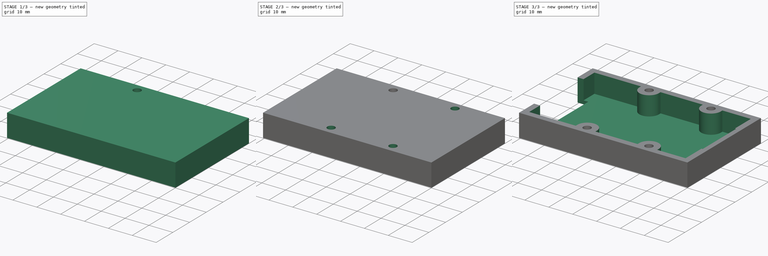
[diagram: build sequence overview — one tinted view per stage of 3, left to right]
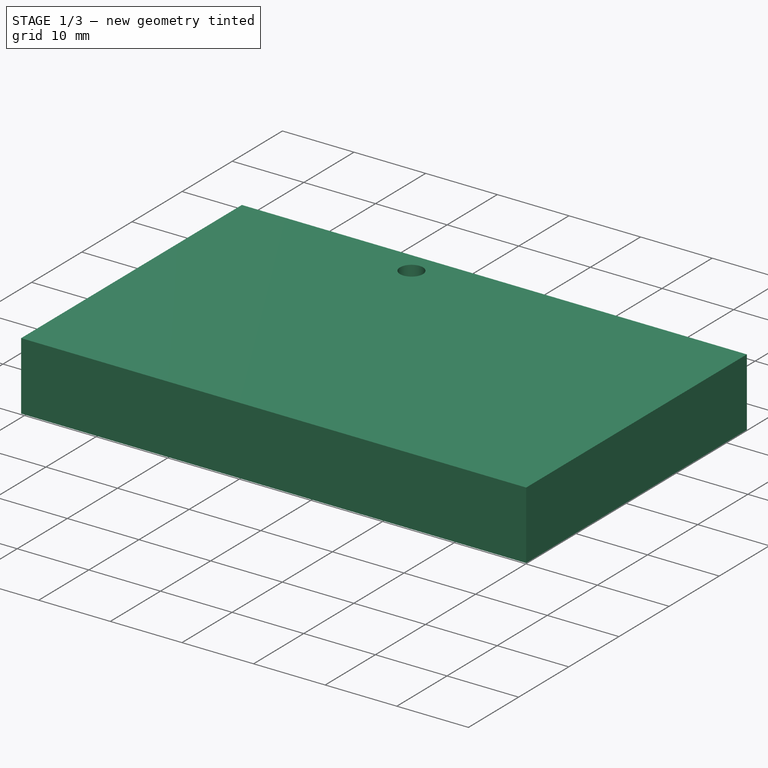
[diagram: stage 1 of 3 — iso view after this stage's code; geometry added in this stage tinted green]
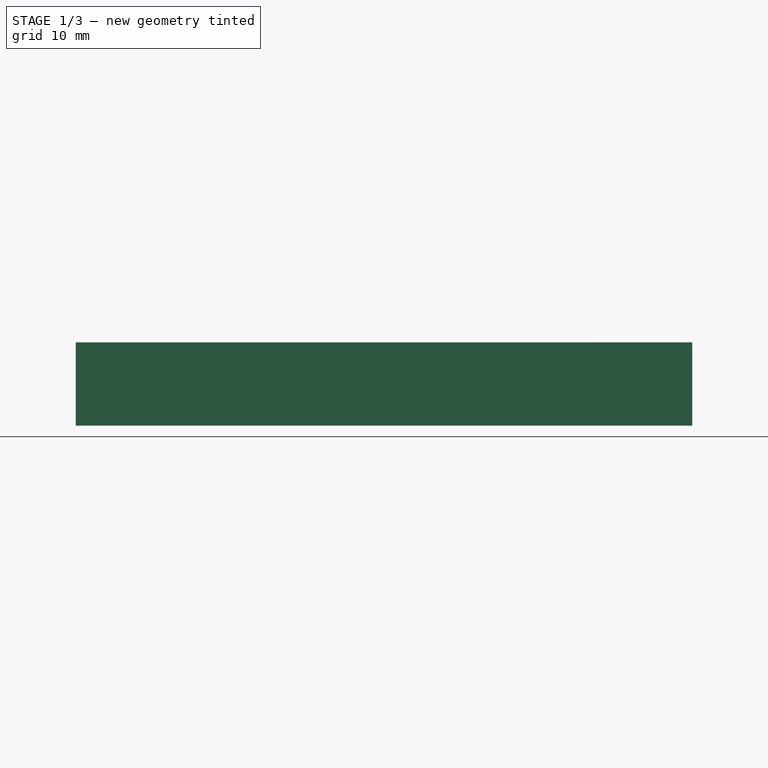
[diagram: stage 1 of 3 — front view after this stage's code; geometry added in this stage tinted green]
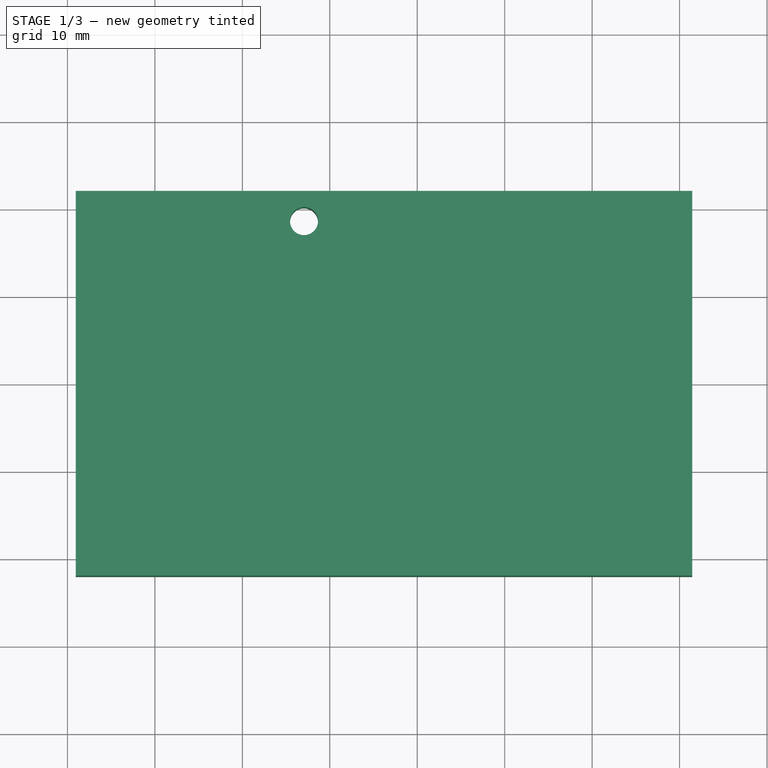
[diagram: stage 1 of 3 — top view after this stage's code; geometry added in this stage tinted green]
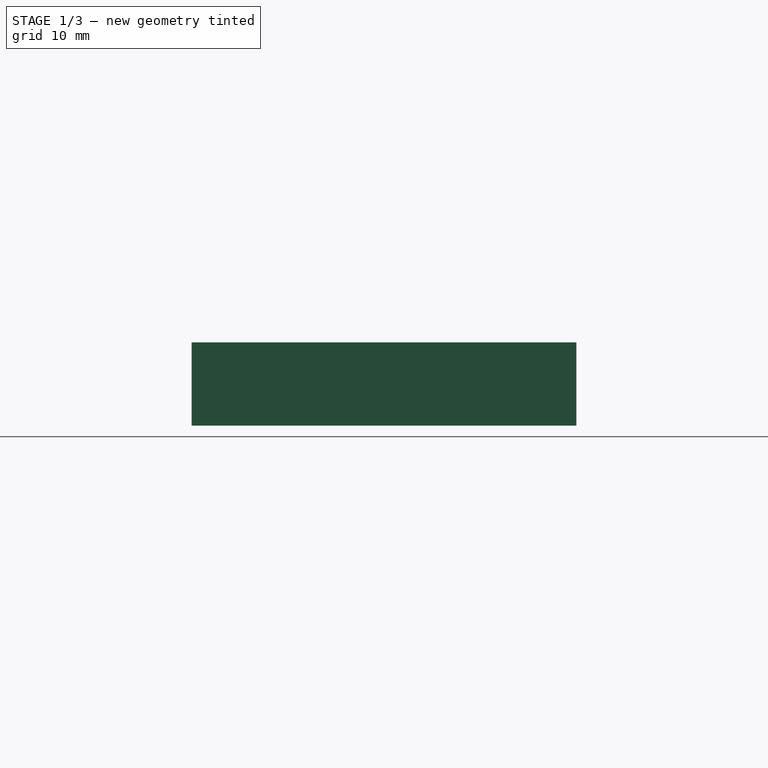
[diagram: stage 1 of 3 — right view after this stage's code; geometry added in this stage tinted green]
FCSTD DOCUMENT  (FreeCAD 0.17R13522 (Git))
Label: Keithley_17X_USB_Bottom
License: All rights reserved
LicenseURL: http://en.wikipedia.org/wiki/All_rights_reserved
objects: Sketcher::SketchObject×4, PartDesign::Pocket×3, PartDesign::Mirrored×2, Spreadsheet::Sheet×1, PartDesign::Pad×1, PartDesign::MultiTransform×1, PartDesign::Body×1
note: 16 computed .brp shape members not serialized (recipe doc carries the construction recipe); baked Part::Feature solids carry a one-line shape summary decoded from their .brp

FEATURE [Spreadsheet::Sheet] Spreadsheet  label="dims"
  cells = A1=Case Thickness; B1(case_t)==0.375in; A2=Case Length; B2(case_l)=70.5; A3=Case Width; B3(case_w)==44mm; A4=Case Side Thickness; B4(case_side_t)=2.5; A5=Case Top Thickness; B5(case_top_t)=1.5; A6=Mount Hole Diameter; B6(mnt_dia)=3.2000000000000002; A7=Mount Hole X Spacing; B7(mnt_x)=25.899999999999999; A8=Mount Hole Y Spacing; B8(mnt_y)=37.100000000000001; A9=PCB Right to Center; B9(right_to_cl)=31.449999999999999; A10=IDC Cutout Width; B10(idc_cutout_w)=26; A11=IDC Cutout Lenght; B11(idc_cutout_l)=4.5
FEATURE [Sketcher::SketchObject] Sketch
  MapMode = 5
  Support = -> [XY_Plane]
  expr: Constraints[11] = dims.right_to_cl
  expr: Constraints[10] = dims.case_w
  expr: Constraints[9] = dims.case_l
  sketch-geometry (4):
    g0: LineSegment StartX=-39.05 StartY=22 StartZ=0 EndX=31.45 EndY=22 EndZ=0
    g1: LineSegment StartX=31.45 StartY=22 StartZ=0 EndX=31.45 EndY=-22 EndZ=0
    g2: LineSegment StartX=31.45 StartY=-22 StartZ=0 EndX=-39.05 EndY=-22 EndZ=0
    g3: LineSegment StartX=-39.05 StartY=-22 StartZ=0 EndX=-39.05 EndY=22 EndZ=0
  constraints (12):
    c: Coincident(g0,g1)
    c: Coincident(g1,g2)
    c: Coincident(g2,g3)
    c: Coincident(g3,g0)
    c: Horizontal(g0)
    c: Horizontal(g2)
    c: Vertical(g1)
    c: Vertical(g3)
    c: Symmetric(g0,g1,g-1)
    c: DistanceX(g0,g0) = 70.5
    c: DistanceY(g1,g1) = 44
    c: DistanceX(g-1,g0) = 31.45
FEATURE [PartDesign::Pad] Pad
  Length = 9.525
  Length2 = 100
  Profile = -> Sketch
  Refine = true
  Reversed = true
  Type = 0
  expr: Length = dims.case_t
FEATURE [Sketcher::SketchObject] Sketch001
  MapMode = 5
  Support = -> [Pad]
  expr: Constraints[2] = dims.mnt_y / 2
  expr: Constraints[1] = dims.mnt_x / 2
  expr: Constraints[0] = dims.mnt_dia / 2
  sketch-geometry (1):
    g0: Circle CenterX=-12.95 CenterY=18.55 CenterZ=0 NormalX=0 NormalY=0 NormalZ=1 AngleXU=0 Radius=1.6
  constraints (3):
    c: Radius(g0) = 1.6
    c: DistanceX(g0,g-1) = 12.95
    c: DistanceY(g-1,g0) = 18.55
FEATURE [PartDesign::Pocket] Pocket
  BaseFeature = -> Pad
  Length = 5
  Length2 = 100
  Profile = -> Sketch001
  Refine = true
  Type = 1
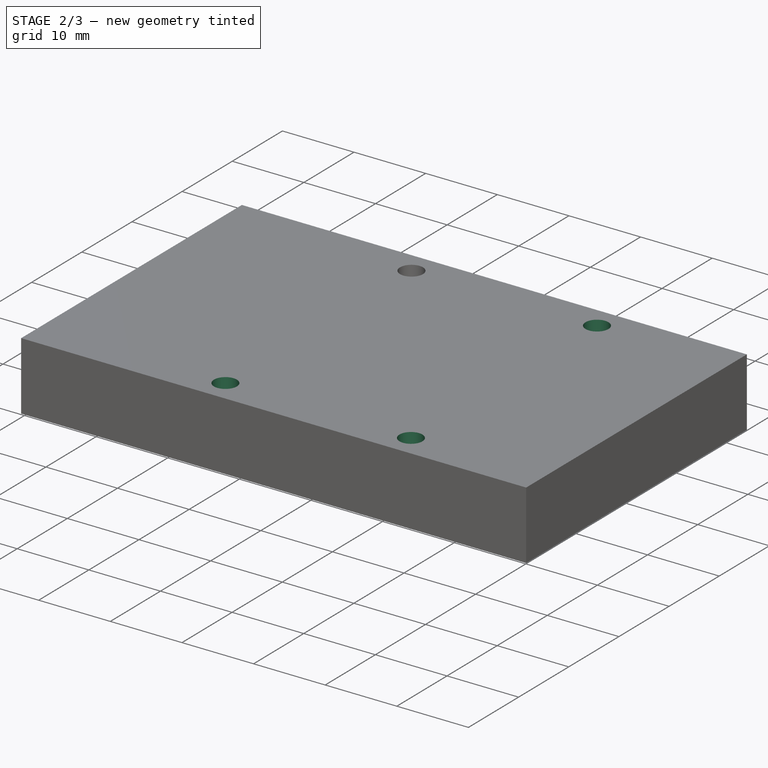
[diagram: stage 2 of 3 — iso view after this stage's code; geometry added in this stage tinted green]
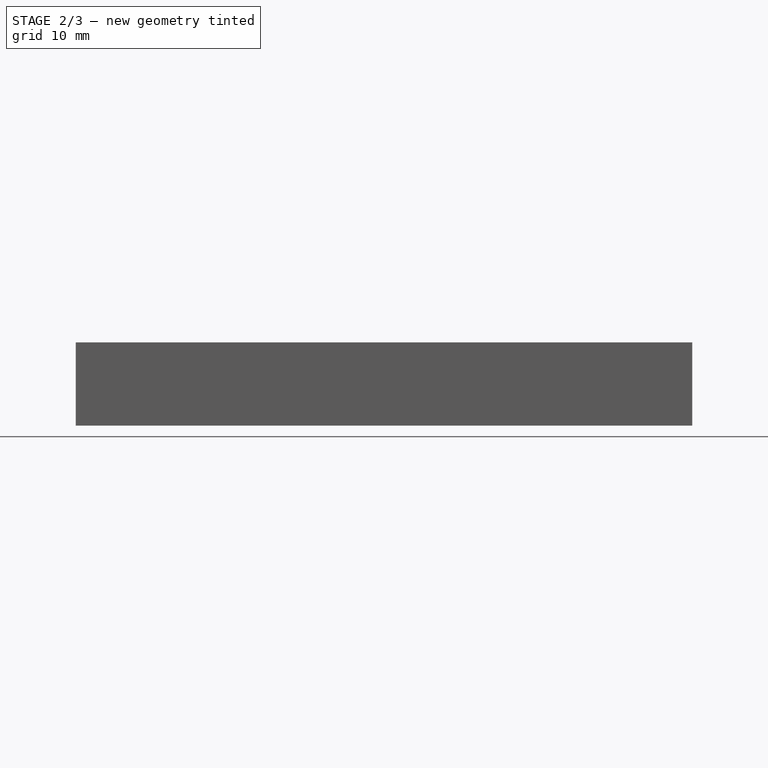
[diagram: stage 2 of 3 — front view after this stage's code; geometry added in this stage tinted green]
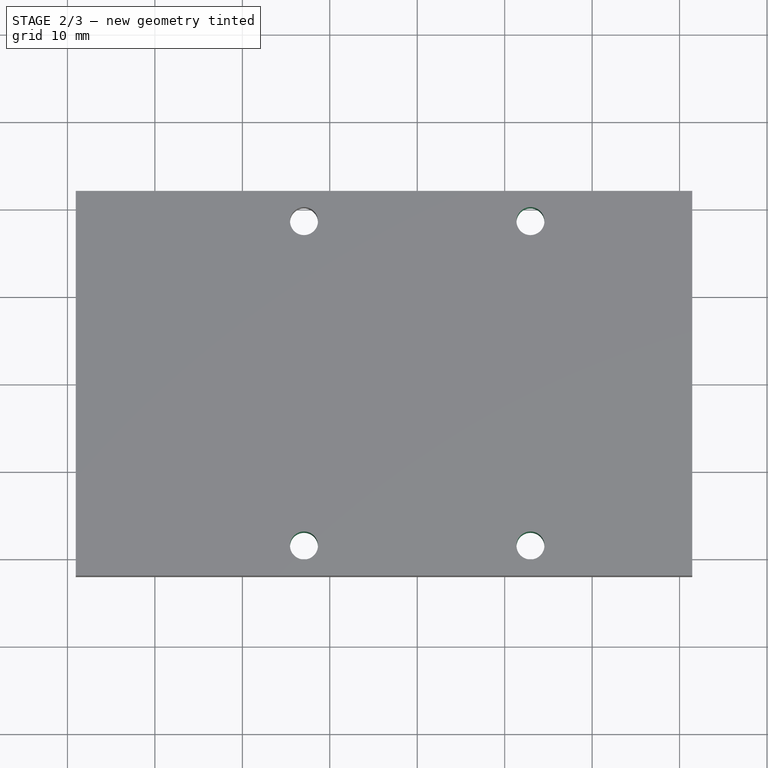
[diagram: stage 2 of 3 — top view after this stage's code; geometry added in this stage tinted green]
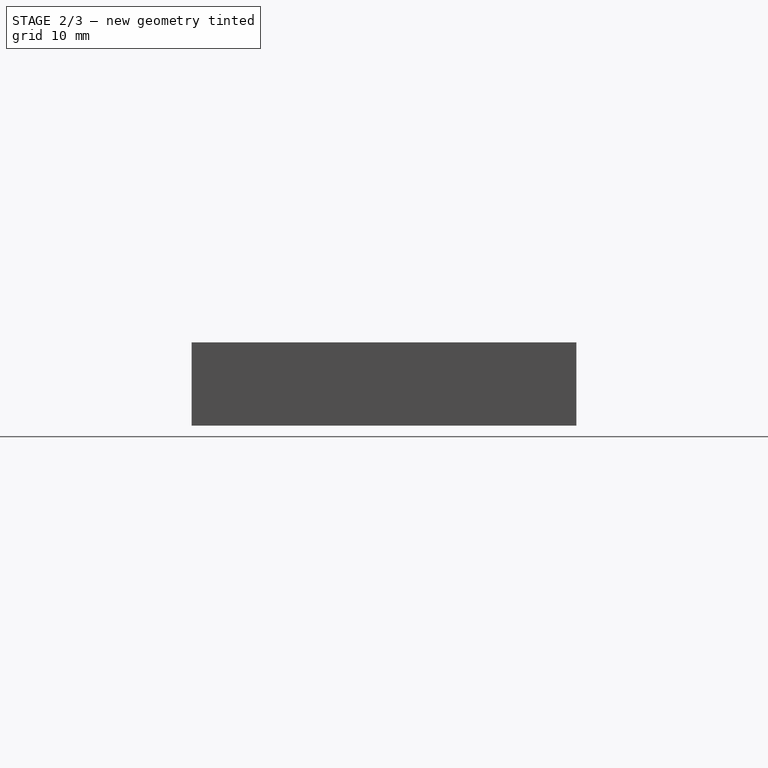
[diagram: stage 2 of 3 — right view after this stage's code; geometry added in this stage tinted green]
FEATURE [PartDesign::Mirrored] Mirrored
  MirrorPlane = -> YZ_Plane
  Refine = true
FEATURE [PartDesign::Mirrored] Mirrored001
  MirrorPlane = -> XZ_Plane
  Refine = true
FEATURE [PartDesign::MultiTransform] MultiTransform
  BaseFeature = -> Pocket
  Originals = -> [Pocket]
  Refine = true
  Transformations = -> [Mirrored,Mirrored001]
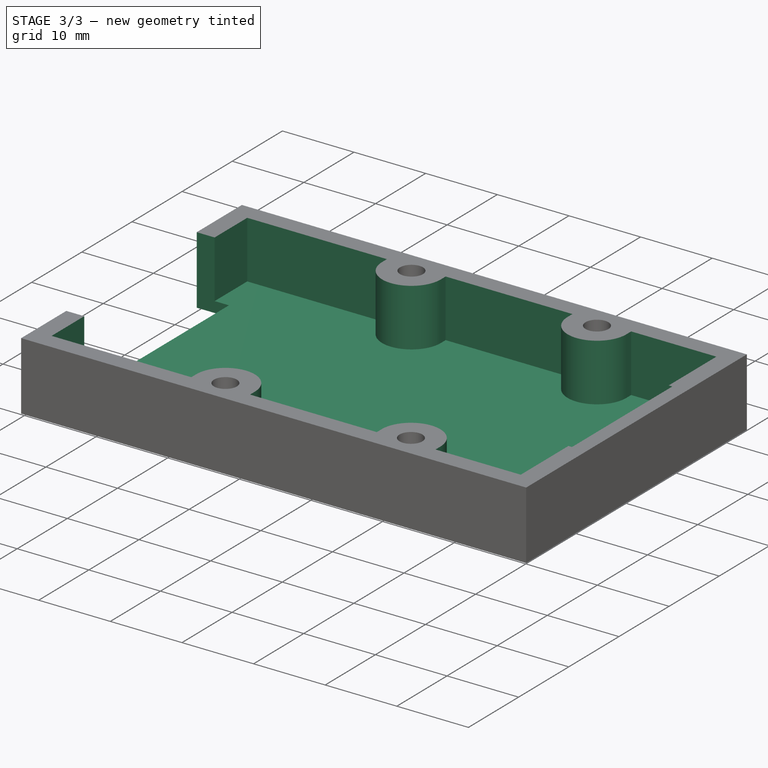
[diagram: stage 3 of 3 — iso view after this stage's code; geometry added in this stage tinted green]
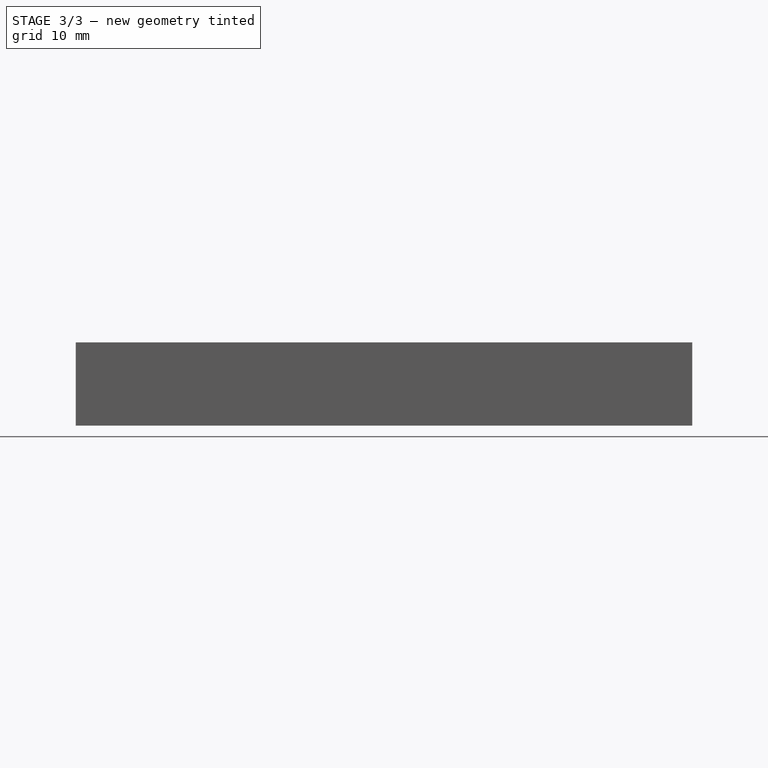
[diagram: stage 3 of 3 — front view after this stage's code; geometry added in this stage tinted green]
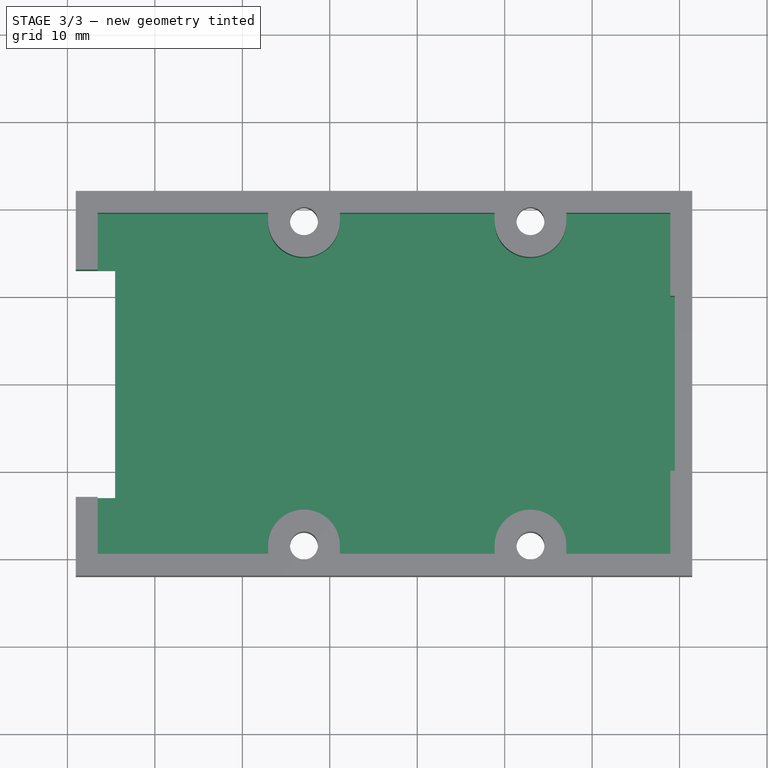
[diagram: stage 3 of 3 — top view after this stage's code; geometry added in this stage tinted green]
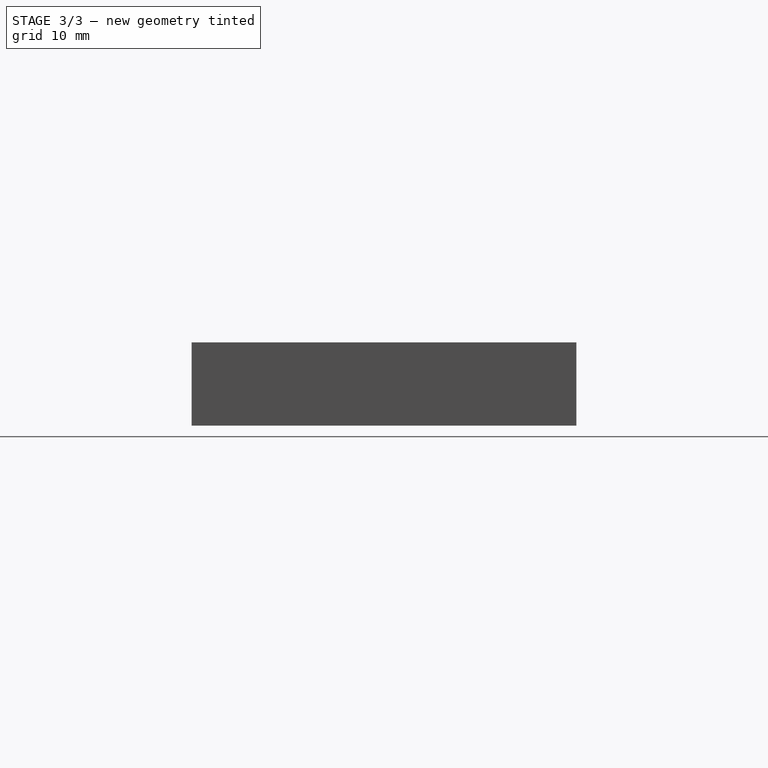
[diagram: stage 3 of 3 — right view after this stage's code; geometry added in this stage tinted green]
FEATURE [Sketcher::SketchObject] Sketch002
  ExternalGeometry = -> [MultiTransform]
  MapMode = 5
  Support = -> [MultiTransform]
  expr: Constraints[27] = dims.mnt_dia / 2 + dims.case_side_t
  expr: Constraints[26] = dims.mnt_dia / 2 + dims.case_side_t
  expr: Constraints[25] = dims.mnt_dia / 2 + dims.case_side_t
  expr: Constraints[24] = dims.mnt_dia / 2 + dims.case_side_t
  expr: Constraints[10] = dims.case_side_t
  expr: Constraints[9] = dims.case_side_t
  expr: Constraints[8] = dims.case_side_t
  sketch-geometry (32):
    g0: LineSegment [constr] StartX=-36.55 StartY=19.5 StartZ=0 EndX=28.95 EndY=19.5 EndZ=0
    g1: LineSegment [constr] StartX=28.95 StartY=19.5 StartZ=0 EndX=28.95 EndY=-19.5 EndZ=0
    g2: LineSegment [constr] StartX=28.95 StartY=-19.5 StartZ=0 EndX=-36.55 EndY=-19.5 EndZ=0
    g3: LineSegment [constr] StartX=-36.55 StartY=-19.5 StartZ=0 EndX=-36.55 EndY=19.5 EndZ=0
    g4: LineSegment [constr] StartX=-17.05 StartY=19.5 StartZ=0 EndX=-17.05 EndY=-19.5 EndZ=0
    g5: LineSegment [constr] StartX=-8.85 StartY=19.5 StartZ=0 EndX=-8.85 EndY=-19.5 EndZ=0
    g6: LineSegment [constr] StartX=8.85 StartY=-19.5 StartZ=0 EndX=8.85 EndY=19.5 EndZ=0
    g7: LineSegment [constr] StartX=17.05 StartY=19.5 StartZ=0 EndX=17.05 EndY=-19.5 EndZ=0
    g8: LineSegment StartX=29.45 StartY=-10 StartZ=0 EndX=29.45 EndY=10 EndZ=0
    g9: LineSegment StartX=29.45 StartY=10 StartZ=0 EndX=28.95 EndY=10 EndZ=0
    g10: LineSegment StartX=28.95 StartY=10 StartZ=0 EndX=28.95 EndY=19.5 EndZ=0
    g11: LineSegment StartX=28.95 StartY=19.5 StartZ=0 EndX=17.05 EndY=19.5 EndZ=0
    g12: LineSegment StartX=8.85 StartY=19.5 StartZ=0 EndX=-8.85 EndY=19.5 EndZ=0
    g13: LineSegment StartX=8.85 StartY=-19.5 StartZ=0 EndX=-8.85 EndY=-19.5 EndZ=0
    g14: LineSegment StartX=17.05 StartY=-19.5 StartZ=0 EndX=28.95 EndY=-19.5 EndZ=0
    g15: LineSegment StartX=28.95 StartY=-19.5 StartZ=0 EndX=28.95 EndY=-10 EndZ=0
    g16: LineSegment StartX=28.95 StartY=-10 StartZ=0 EndX=29.45 EndY=-10 EndZ=0
    g17: LineSegment StartX=-17.05 StartY=19.5 StartZ=0 EndX=-36.55 EndY=19.5 EndZ=0
    g18: LineSegment StartX=-36.55 StartY=19.5 StartZ=0 EndX=-36.55 EndY=-19.5 EndZ=0
    g19: LineSegment StartX=-36.55 StartY=-19.5 StartZ=0 EndX=-17.05 EndY=-19.5 EndZ=0
    g20: LineSegment StartX=-17.05 StartY=19.5 StartZ=0 EndX=-17.05 EndY=18.55 EndZ=0
    g21: LineSegment StartX=-8.85 StartY=19.5 StartZ=0 EndX=-8.85 EndY=18.55 EndZ=0
    g22: LineSegment StartX=8.85 StartY=19.5 StartZ=0 EndX=8.85 EndY=18.55 EndZ=0
    g23: LineSegment StartX=17.05 StartY=19.5 StartZ=0 EndX=17.05 EndY=18.55 EndZ=0
    g24: LineSegment StartX=17.05 StartY=-19.5 StartZ=0 EndX=17.05 EndY=-18.55 EndZ=0
    g25: LineSegment StartX=8.85 StartY=-19.5 StartZ=0 EndX=8.85 EndY=-18.55 EndZ=0
    g26: LineSegment StartX=-8.85 StartY=-19.5 StartZ=0 EndX=-8.85 EndY=-18.55 EndZ=0
    g27: LineSegment StartX=-17.05 StartY=-19.5 StartZ=0 EndX=-17.05 EndY=-18.55 EndZ=0
    g28: ArcOfCircle CenterX=-12.95 CenterY=18.55 CenterZ=0 NormalX=0 NormalY=0 NormalZ=1 AngleXU=0 Radius=4.1 StartAngle=3.14159 EndAngle=6.28319
    g29: ArcOfCircle CenterX=12.95 CenterY=18.55 CenterZ=0 NormalX=0 NormalY=0 NormalZ=1 AngleXU=0 Radius=4.1 StartAngle=3.14159 EndAngle=6.28319
    g30: ArcOfCircle CenterX=12.95 CenterY=-18.55 CenterZ=0 NormalX=0 NormalY=0 NormalZ=1 AngleXU=0 Radius=4.1 StartAngle=9.1636e-08 EndAngle=3.14159
    g31: ArcOfCircle CenterX=-12.95 CenterY=-18.55 CenterZ=0 NormalX=0 NormalY=0 NormalZ=1 AngleXU=0 Radius=4.1 StartAngle=1.17031e-06 EndAngle=3.14159
  constraints (99):
    c: Coincident(g0,g1)
    c: Coincident(g1,g2)
    c: Coincident(g2,g3)
    c: Coincident(g3,g0)
    c: Horizontal(g0)
    c: Horizontal(g2)
    c: Vertical(g1)
    c: Vertical(g3)
    c: DistanceX(g0,g-4) = 2.5
    c: DistanceX(g-6,g0) = 2.5
    c: DistanceY(g0,g-4) = 2.5
    c: Symmetric(g0,g1,g-1)
    c: PointOnObject(g4,g0)
    c: PointOnObject(g4,g2)
    c: Vertical(g4)
    c: PointOnObject(g5,g0)
    c: PointOnObject(g5,g2)
    c: Vertical(g5)
    c: PointOnObject(g6,g2)
    c: PointOnObject(g6,g0)
    c: Vertical(g6)
    c: PointOnObject(g7,g0)
    c: PointOnObject(g7,g2)
    c: Vertical(g7)
    c: DistanceX(g4,g-7) = 4.1
    c: DistanceX(g-7,g5) = 4.1
    c: DistanceX(g6,g-8) = 4.1
    c: DistanceX(g-8,g7) = 4.1
    c: Vertical(g8)
    c: Coincident(g9,g8)
    c: Horizontal(g9)
    c: Coincident(g10,g9)
    c: Vertical(g10)
    c: Coincident(g11,g10)
    c: PointOnObject(g11,g7)
    c: PointOnObject(g12,g6)
    c: PointOnObject(g12,g5)
    c: PointOnObject(g13,g6)
    c: PointOnObject(g13,g5)
    c: Horizontal(g13)
    c: PointOnObject(g14,g7)
    c: Horizontal(g14)
    c: Coincident(g15,g14)
    c: Vertical(g15)
    c: Coincident(g16,g15)
    c: Coincident(g16,g8)
    c: PointOnObject(g17,g4)
    c: Horizontal(g17)
    c: Coincident(g18,g17)
    c: Vertical(g18)
    c: Coincident(g19,g18)
    c: PointOnObject(g19,g4)
    c: Horizontal(g19)
    c: Horizontal(g12)
    c: Horizontal(g11)
    c: Horizontal(g16)
    c: Coincident(g17,g0)
    c: Coincident(g18,g2)
    c: Coincident(g12,g5)
    c: Coincident(g13,g5)
    c: Coincident(g14,g7)
    c: Coincident(g11,g7)
    c: Coincident(g10,g0)
    c: Coincident(g14,g1)
    c: DistanceX(g8,g-4) = 2
    c: DistanceY(g8,g8) = 20
    c: Symmetric(g8,g8,g-1)
    c: Coincident(g20,g4)
    c: Coincident(g21,g5)
    c: Coincident(g22,g6)
    c: Coincident(g23,g7)
    c: Coincident(g24,g7)
    c: Coincident(g25,g6)
    c: Coincident(g26,g5)
    c: Coincident(g27,g4)
    c: Vertical(g20)
    c: Vertical(g21)
    c: Vertical(g22)
    c: Vertical(g23)
    c: Vertical(g24)
    c: Vertical(g25)
    c: Vertical(g26)
    c: Vertical(g27)
    c: Coincident(g28,g21)
    c: Coincident(g28,g20)
    c: Coincident(g28,g-7)
    c: Coincident(g29,g-8)
    c: Coincident(g29,g22)
    c: Coincident(g29,g23)
    c: Coincident(g30,g24)
    c: Coincident(g30,g25)
    c: Coincident(g30,g-9)
    c: Coincident(g31,g26)
    c: Coincident(g31,g27)
    c: Coincident(g31,g-10)
    c: Tangent(g28,g5)
    c: Tangent(g31,g5)
    c: Tangent(g29,g7)
    c: Tangent(g30,g6)
FEATURE [PartDesign::Pocket] Pocket001
  BaseFeature = -> MultiTransform
  Length = 8.025
  Length2 = 100
  Profile = -> Sketch002
  Refine = true
  Type = 0
  expr: Length = dims.case_t - dims.case_top_t * 1mm
FEATURE [Sketcher::SketchObject] Sketch003
  ExternalGeometry = -> [Pocket001]
  MapMode = 5
  Placement = pos=(0,0,-9.525) rot=(1,0,0;3.14159rad)
  Support = -> [Pocket001]
  expr: Constraints[9] = dims.idc_cutout_l
  expr: Constraints[10] = dims.idc_cutout_w
  sketch-geometry (4):
    g0: LineSegment StartX=-39.05 StartY=13 StartZ=0 EndX=-34.55 EndY=13 EndZ=0
    g1: LineSegment StartX=-34.55 StartY=13 StartZ=0 EndX=-34.55 EndY=-13 EndZ=0
    g2: LineSegment StartX=-34.55 StartY=-13 StartZ=0 EndX=-39.05 EndY=-13 EndZ=0
    g3: LineSegment StartX=-39.05 StartY=-13 StartZ=0 EndX=-39.05 EndY=13 EndZ=0
  constraints (12):
    c: Coincident(g0,g1)
    c: Coincident(g1,g2)
    c: Coincident(g2,g3)
    c: Coincident(g3,g0)
    c: Horizontal(g0)
    c: Horizontal(g2)
    c: Vertical(g1)
    c: Vertical(g3)
    c: PointOnObject(g0,g-3)
    c: DistanceX(g0,g0) = 4.5
    c: DistanceY(g3,g3) = 26
    c: Symmetric(g0,g2,g-1)
FEATURE [PartDesign::Pocket] Pocket002
  BaseFeature = -> Pocket001
  Length = 5
  Length2 = 100
  Profile = -> Sketch003
  Refine = true
  Type = 1
FEATURE [PartDesign::Body] Body
  Group = -> [Sketch,Pad,Sketch001,Pocket,MultiTransform,Mirrored,Mirrored001,Sketch002,Pocket001,Sketch003,Pocket002]
  Origin = -> Origin
  Tip = -> Pocket002
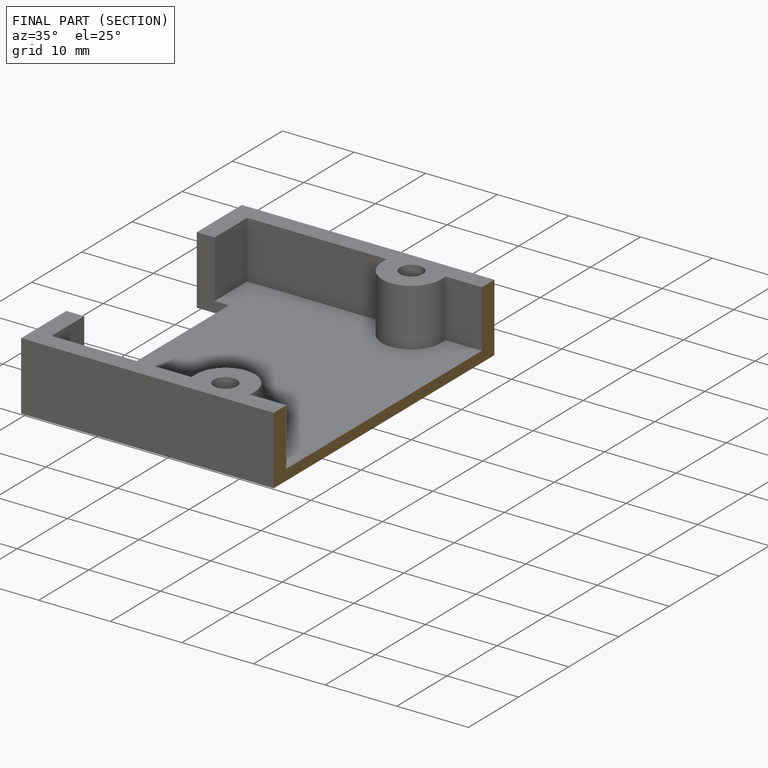
[diagram: finished part — half-section view (interior)]
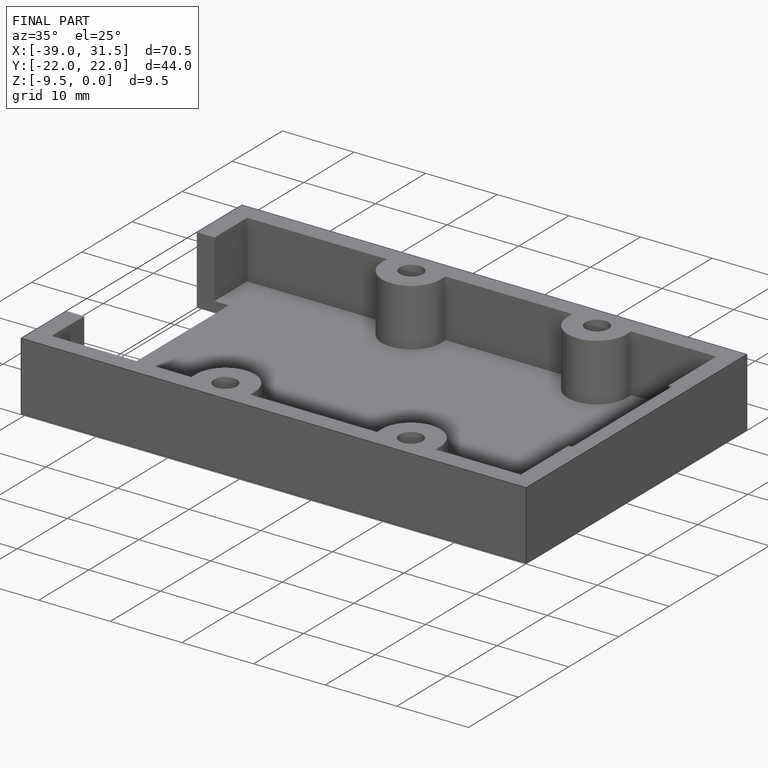
[diagram: finished part — iso view with bounding-box wireframe]
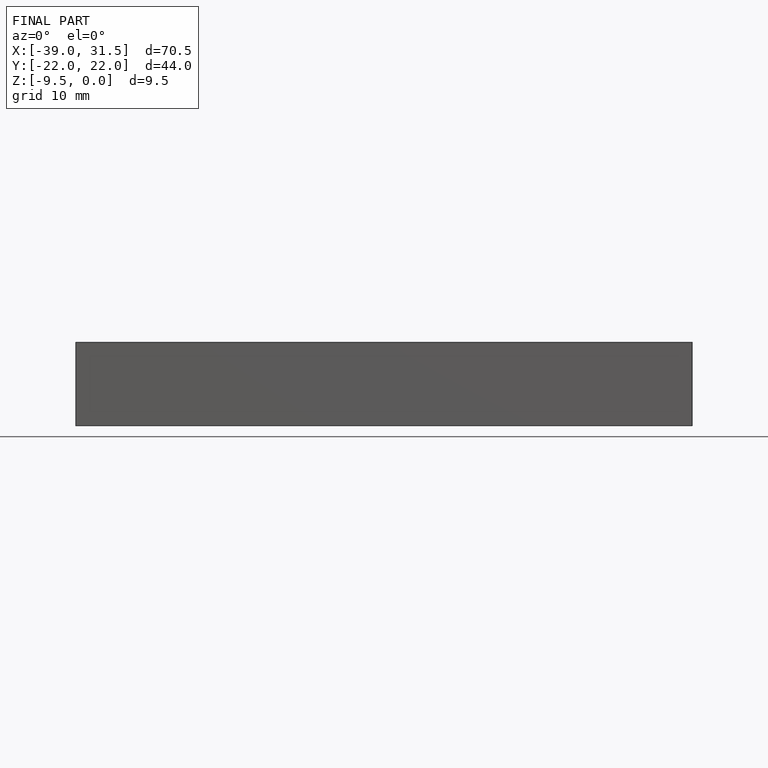
[diagram: finished part — front view with bounding-box wireframe]
